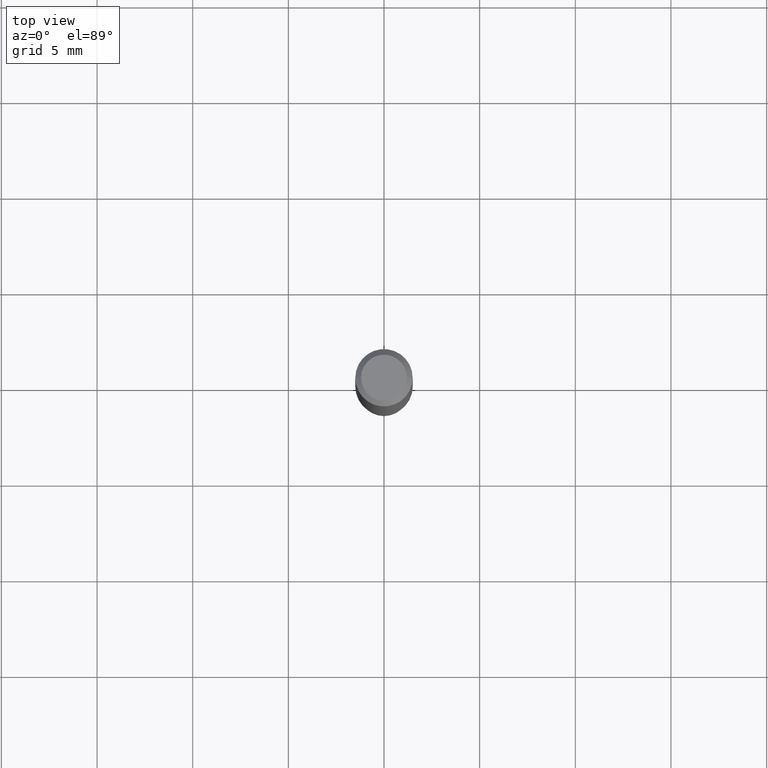
[diagram: clean part render]
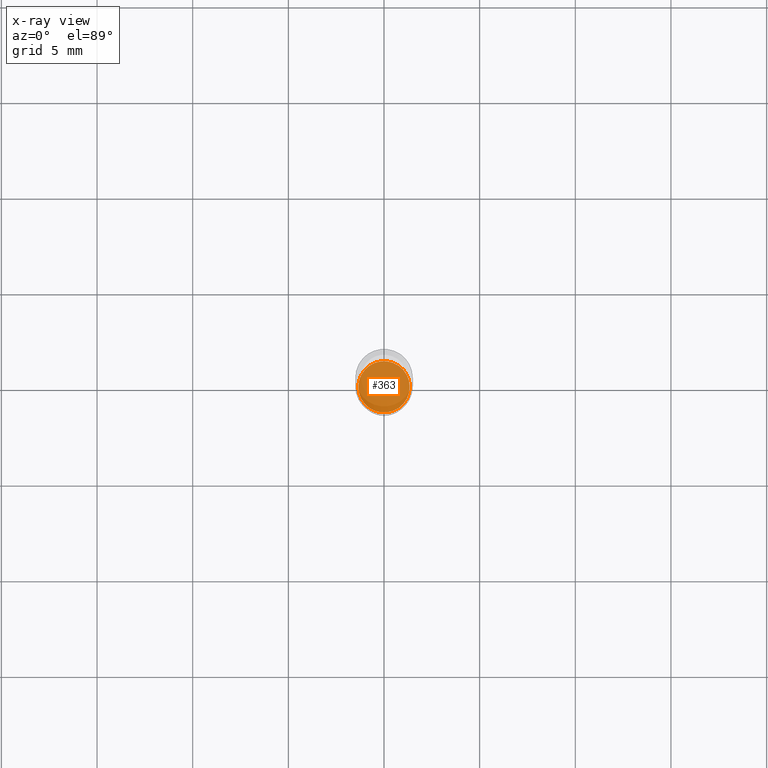
[diagram: x-ray — body ghosted, one internal face saturated and labeled with its STEP entity id]
A machine part, top view, then the same camera in x-ray: the body is ghosted and one INTERNAL B-rep face — a face not visible from any outside direction — is saturated and labeled: STEP entity #363.
In plain terms, the highlighted planar face has unit normal (-0, 0, 1).
Its self-contained STEP definition (entity closure, byte-faithful):
#61 = DIRECTION ( 'NONE',  ( 1.000000000000000000, -6.982962677686267499E-15, 0.000000000000000000 ) ) ;
#117 = CARTESIAN_POINT ( 'NONE',  ( -0.05285000000000000114, -3.443255262340498567E-15, -1.094500000000000028 ) ) ;
#131 = EDGE_LOOP ( 'NONE', ( #292, #457 ) ) ;
#139 = VERTEX_POINT ( 'NONE', #117 ) ;
#148 = DIRECTION ( 'NONE',  ( -2.445468806185136597E-29, 3.491481338843145583E-15, 1.000000000000000000 ) ) ;
#166 = DIRECTION ( 'NONE',  ( -2.445468806185136597E-29, 3.491481338843145583E-15, 1.000000000000000000 ) ) ;
#187 = CARTESIAN_POINT ( 'NONE',  ( 7.012475686570645720E-30, -6.650194186352977832E-15, -1.094500000000000028 ) ) ;
#252 = CARTESIAN_POINT ( 'NONE',  ( 2.676565608369632355E-29, -3.821426325363822773E-15, -1.094500000000000028 ) ) ;
#291 = AXIS2_PLACEMENT_3D ( 'NONE', #187, #489, #339 ) ;
#292 = ORIENTED_EDGE ( 'NONE', *, *, #296, .F. ) ;
#296 = EDGE_CURVE ( 'NONE', #384, #139, #300, .T. ) ;
#297 = FACE_OUTER_BOUND ( 'NONE', #131, .T. ) ;
#300 = CIRCLE ( 'NONE', #455, 0.05285000000000000114 ) ;
#302 = CARTESIAN_POINT ( 'NONE',  ( 0.05285000000000000114, -4.190475902879542038E-15, -1.094500000000000028 ) ) ;
#314 = CIRCLE ( 'NONE', #322, 0.05285000000000000114 ) ;
#322 = AXIS2_PLACEMENT_3D ( 'NONE', #411, #148, #485 ) ;
#339 = DIRECTION ( 'NONE',  ( 1.000000000000000000, -6.982962677686265922E-15, 4.876176775795935793E-29 ) ) ;
#363 = ADVANCED_FACE ( 'NONE', ( #297 ), #406, .F. ) ;
#384 = VERTEX_POINT ( 'NONE', #302 ) ;
#406 = PLANE ( 'NONE',  #291 ) ;
#411 = CARTESIAN_POINT ( 'NONE',  ( 2.676565608369632355E-29, -3.821426325363822773E-15, -1.094500000000000028 ) ) ;
#455 = AXIS2_PLACEMENT_3D ( 'NONE', #252, #166, #61 ) ;
#457 = ORIENTED_EDGE ( 'NONE', *, *, #469, .F. ) ;
#469 = EDGE_CURVE ( 'NONE', #139, #384, #314, .T. ) ;
#485 = DIRECTION ( 'NONE',  ( 1.000000000000000000, -6.982962677686267499E-15, 0.000000000000000000 ) ) ;
#489 = DIRECTION ( 'NONE',  ( -2.438088387897960049E-29, 3.491481338843145188E-15, 1.000000000000000000 ) ) ;